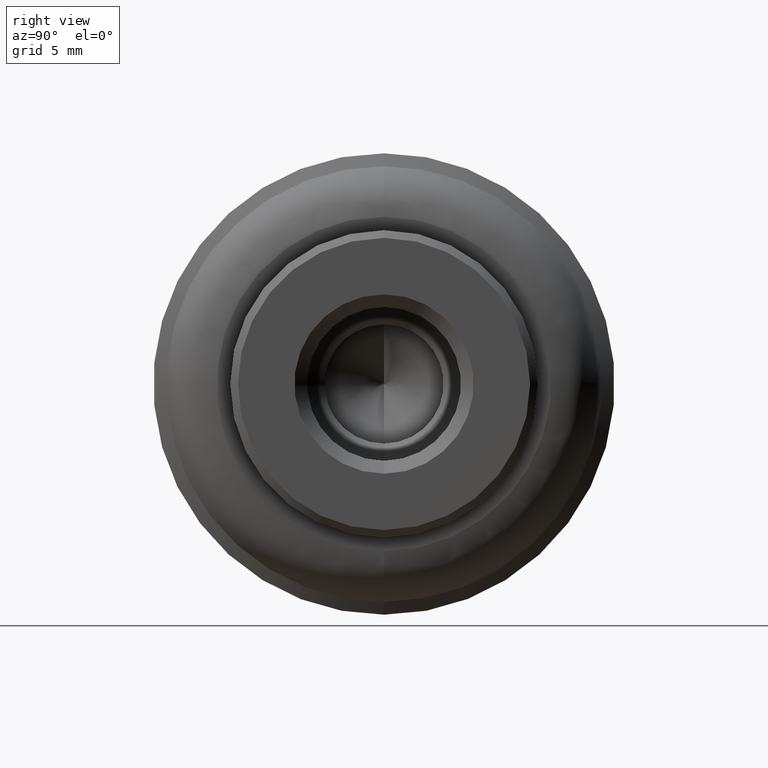
[diagram: clean part render]
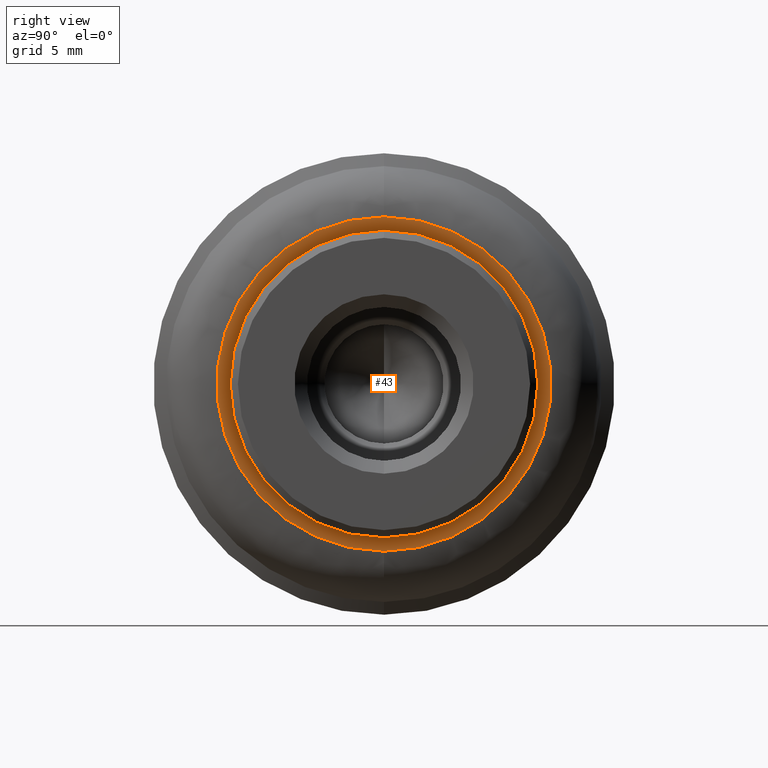
[diagram: same view with one face highlighted and labeled with its STEP entity id]
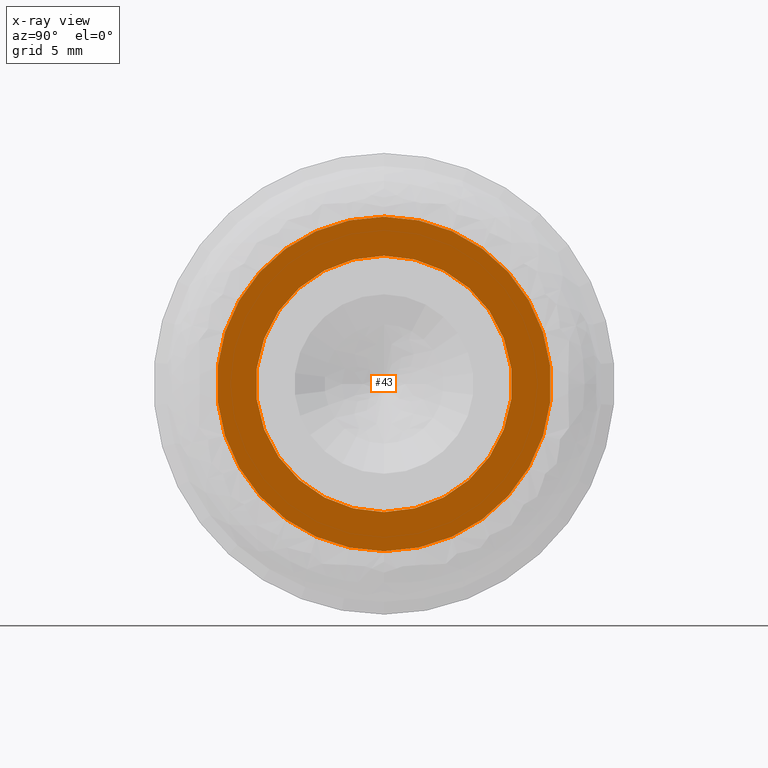
[diagram: x-ray of the same camera — body ghosted, the highlighted face saturated]
A machine part, right view. The second image highlights one B-rep face of the part: STEP entity #43.
The next image is the same camera in x-ray: the body ghosted, the highlighted face saturated — about 0% of this face is hidden behind the body in this view.
In plain terms, the highlighted planar face has unit normal (-1, 0, 0).
Its self-contained STEP definition (entity closure, byte-faithful):
#43=ADVANCED_FACE('',(#105,#106),#104,.F.);
#104=PLANE('',#415);
#105=FACE_OUTER_BOUND('',#416,.T.);
#106=FACE_BOUND('',#417,.T.);
#412=CARTESIAN_POINT('',(-2.50000000000E+00,-1.35571773630E+01,-1.50022100000E+01));
#413=DIRECTION('',(-1.00000000000E+00,0.00000000000E+00,0.00000000000E+00));
#414=DIRECTION('',(0.00000000000E+00,0.00000000000E+00,1.00000000000E+00));
#415=AXIS2_PLACEMENT_3D('',#412,#413,#414);
#416=EDGE_LOOP('',(#724,#725));
#417=EDGE_LOOP('',(#726,#727));
#724=ORIENTED_EDGE('',*,*,#848,.F.);
#725=ORIENTED_EDGE('',*,*,#849,.F.);
#726=ORIENTED_EDGE('',*,*,#850,.T.);
#727=ORIENTED_EDGE('',*,*,#851,.T.);
#848=EDGE_CURVE('',#970,#971,#972,.T.);
#849=EDGE_CURVE('',#971,#970,#978,.T.);
#850=EDGE_CURVE('',#984,#985,#986,.T.);
#851=EDGE_CURVE('',#985,#984,#992,.T.);
#970=VERTEX_POINT('',#1357);
#971=VERTEX_POINT('',#1358);
#972=CIRCLE('',#1362,6.52270000000E+00);
#978=CIRCLE('',#1366,6.52270000000E+00);
#984=VERTEX_POINT('',#1367);
#985=VERTEX_POINT('',#1368);
#986=CIRCLE('',#1372,5.00000000000E+00);
#992=CIRCLE('',#1376,5.00000000000E+00);
#1357=CARTESIAN_POINT('',(-2.50000000000E+00,2.96059473233E-16,-6.52270000000E+00));
#1358=CARTESIAN_POINT('',(-2.50000000000E+00,0.00000000000E+00,6.52270000000E+00));
#1359=CARTESIAN_POINT('',(-2.50000000000E+00,0.00000000000E+00,0.00000000000E+00));
#1360=DIRECTION('',(-1.00000000000E+00,0.00000000000E+00,0.00000000000E+00));
#1361=DIRECTION('',(0.00000000000E+00,-1.22460635382E-16,1.00000000000E+00));
#1362=AXIS2_PLACEMENT_3D('',#1359,#1360,#1361);
#1363=CARTESIAN_POINT('',(-2.50000000000E+00,0.00000000000E+00,0.00000000000E+00));
#1364=DIRECTION('',(-1.00000000000E+00,0.00000000000E+00,0.00000000000E+00));
#1365=DIRECTION('',(0.00000000000E+00,-1.22460635382E-16,1.00000000000E+00));
#1366=AXIS2_PLACEMENT_3D('',#1363,#1364,#1365);
#1367=CARTESIAN_POINT('',(-2.50000000000E+00,0.00000000000E+00,5.00000000000E+00));
#1368=CARTESIAN_POINT('',(-2.50000000000E+00,2.96059473233E-16,-5.00000000000E+00));
#1369=CARTESIAN_POINT('',(-2.50000000000E+00,0.00000000000E+00,0.00000000000E+00));
#1370=DIRECTION('',(-1.00000000000E+00,0.00000000000E+00,0.00000000000E+00));
#1371=DIRECTION('',(0.00000000000E+00,-1.22460635382E-16,1.00000000000E+00));
#1372=AXIS2_PLACEMENT_3D('',#1369,#1370,#1371);
#1373=CARTESIAN_POINT('',(-2.50000000000E+00,0.00000000000E+00,0.00000000000E+00));
#1374=DIRECTION('',(-1.00000000000E+00,0.00000000000E+00,0.00000000000E+00));
#1375=DIRECTION('',(0.00000000000E+00,-1.22460635382E-16,1.00000000000E+00));
#1376=AXIS2_PLACEMENT_3D('',#1373,#1374,#1375);